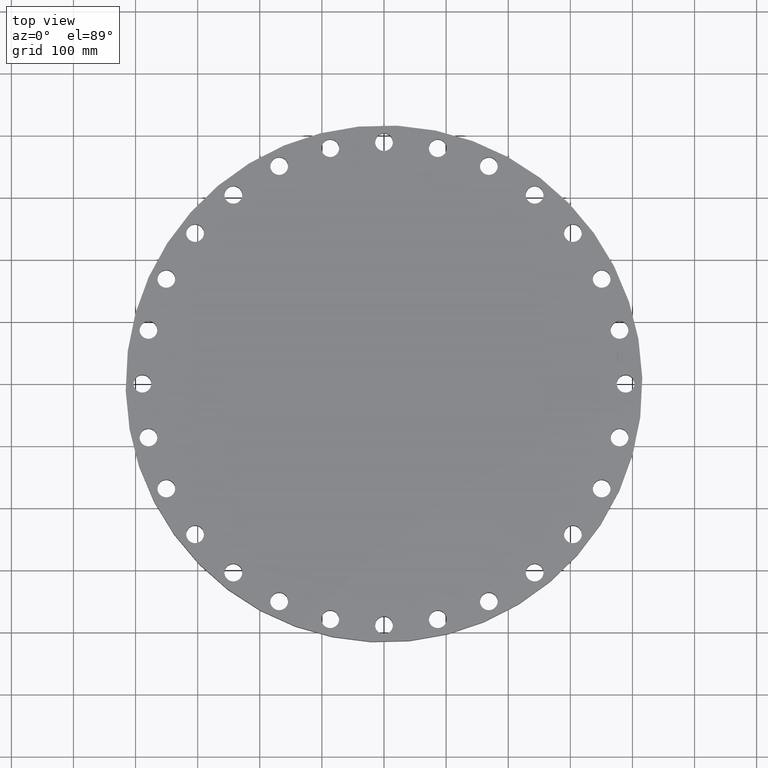
[diagram: clean part render]
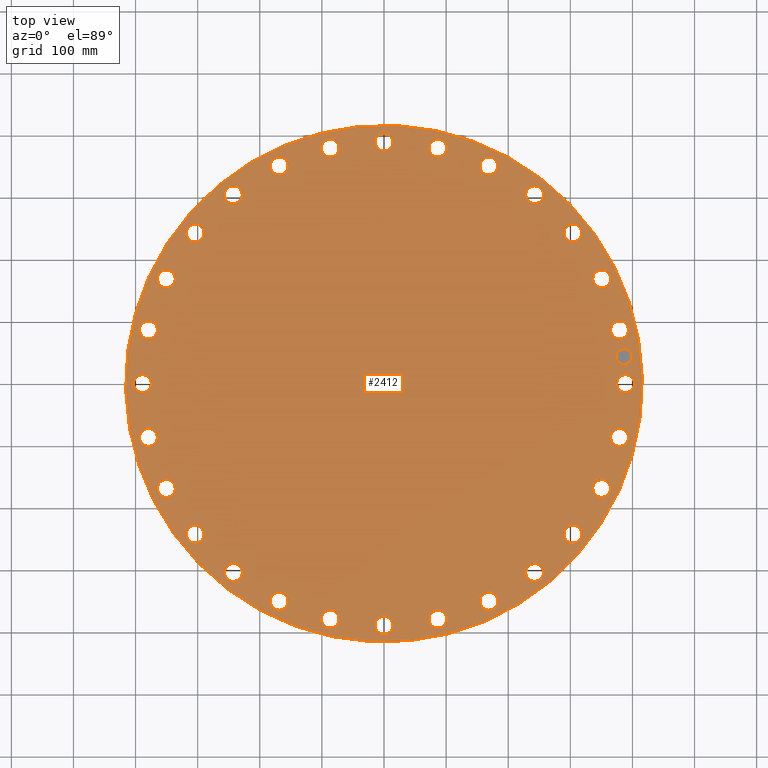
[diagram: same view with one face highlighted and labeled with its STEP entity id]
A machine part, top view. The second image highlights one B-rep face of the part: STEP entity #2412.
In plain terms, the highlighted planar face has unit normal (0, 0, -1).
Its self-contained STEP definition (entity closure, byte-faithful):
#65=AXIS2_PLACEMENT_3D('Circle Axis2P3D',#63,#64,$) ;
#89=AXIS2_PLACEMENT_3D('Circle Axis2P3D',#87,#88,$) ;
#123=AXIS2_PLACEMENT_3D('Circle Axis2P3D',#121,#122,$) ;
#147=AXIS2_PLACEMENT_3D('Circle Axis2P3D',#145,#146,$) ;
#1106=AXIS2_PLACEMENT_3D('Circle Axis2P3D',#1104,#1105,$) ;
#1118=AXIS2_PLACEMENT_3D('Circle Axis2P3D',#1116,#1117,$) ;
#1150=AXIS2_PLACEMENT_3D('Circle Axis2P3D',#1148,#1149,$) ;
#1162=AXIS2_PLACEMENT_3D('Circle Axis2P3D',#1160,#1161,$) ;
#1194=AXIS2_PLACEMENT_3D('Circle Axis2P3D',#1192,#1193,$) ;
#1206=AXIS2_PLACEMENT_3D('Circle Axis2P3D',#1204,#1205,$) ;
#1238=AXIS2_PLACEMENT_3D('Circle Axis2P3D',#1236,#1237,$) ;
#1250=AXIS2_PLACEMENT_3D('Circle Axis2P3D',#1248,#1249,$) ;
#1282=AXIS2_PLACEMENT_3D('Circle Axis2P3D',#1280,#1281,$) ;
#1294=AXIS2_PLACEMENT_3D('Circle Axis2P3D',#1292,#1293,$) ;
#1326=AXIS2_PLACEMENT_3D('Circle Axis2P3D',#1324,#1325,$) ;
#1338=AXIS2_PLACEMENT_3D('Circle Axis2P3D',#1336,#1337,$) ;
#1370=AXIS2_PLACEMENT_3D('Circle Axis2P3D',#1368,#1369,$) ;
#1382=AXIS2_PLACEMENT_3D('Circle Axis2P3D',#1380,#1381,$) ;
#1414=AXIS2_PLACEMENT_3D('Circle Axis2P3D',#1412,#1413,$) ;
#1426=AXIS2_PLACEMENT_3D('Circle Axis2P3D',#1424,#1425,$) ;
#1458=AXIS2_PLACEMENT_3D('Circle Axis2P3D',#1456,#1457,$) ;
#1470=AXIS2_PLACEMENT_3D('Circle Axis2P3D',#1468,#1469,$) ;
#1502=AXIS2_PLACEMENT_3D('Circle Axis2P3D',#1500,#1501,$) ;
#1514=AXIS2_PLACEMENT_3D('Circle Axis2P3D',#1512,#1513,$) ;
#1546=AXIS2_PLACEMENT_3D('Circle Axis2P3D',#1544,#1545,$) ;
#1558=AXIS2_PLACEMENT_3D('Circle Axis2P3D',#1556,#1557,$) ;
#1590=AXIS2_PLACEMENT_3D('Circle Axis2P3D',#1588,#1589,$) ;
#1602=AXIS2_PLACEMENT_3D('Circle Axis2P3D',#1600,#1601,$) ;
#1634=AXIS2_PLACEMENT_3D('Circle Axis2P3D',#1632,#1633,$) ;
#1646=AXIS2_PLACEMENT_3D('Circle Axis2P3D',#1644,#1645,$) ;
#1678=AXIS2_PLACEMENT_3D('Circle Axis2P3D',#1676,#1677,$) ;
#1690=AXIS2_PLACEMENT_3D('Circle Axis2P3D',#1688,#1689,$) ;
#1722=AXIS2_PLACEMENT_3D('Circle Axis2P3D',#1720,#1721,$) ;
#1734=AXIS2_PLACEMENT_3D('Circle Axis2P3D',#1732,#1733,$) ;
#1766=AXIS2_PLACEMENT_3D('Circle Axis2P3D',#1764,#1765,$) ;
#1778=AXIS2_PLACEMENT_3D('Circle Axis2P3D',#1776,#1777,$) ;
#1810=AXIS2_PLACEMENT_3D('Circle Axis2P3D',#1808,#1809,$) ;
#1822=AXIS2_PLACEMENT_3D('Circle Axis2P3D',#1820,#1821,$) ;
#1854=AXIS2_PLACEMENT_3D('Circle Axis2P3D',#1852,#1853,$) ;
#1866=AXIS2_PLACEMENT_3D('Circle Axis2P3D',#1864,#1865,$) ;
#1898=AXIS2_PLACEMENT_3D('Circle Axis2P3D',#1896,#1897,$) ;
#1910=AXIS2_PLACEMENT_3D('Circle Axis2P3D',#1908,#1909,$) ;
#1942=AXIS2_PLACEMENT_3D('Circle Axis2P3D',#1940,#1941,$) ;
#1954=AXIS2_PLACEMENT_3D('Circle Axis2P3D',#1952,#1953,$) ;
#1986=AXIS2_PLACEMENT_3D('Circle Axis2P3D',#1984,#1985,$) ;
#1998=AXIS2_PLACEMENT_3D('Circle Axis2P3D',#1996,#1997,$) ;
#2030=AXIS2_PLACEMENT_3D('Circle Axis2P3D',#2028,#2029,$) ;
#2042=AXIS2_PLACEMENT_3D('Circle Axis2P3D',#2040,#2041,$) ;
#2074=AXIS2_PLACEMENT_3D('Circle Axis2P3D',#2072,#2073,$) ;
#2086=AXIS2_PLACEMENT_3D('Circle Axis2P3D',#2084,#2085,$) ;
#2118=AXIS2_PLACEMENT_3D('Circle Axis2P3D',#2116,#2117,$) ;
#2130=AXIS2_PLACEMENT_3D('Circle Axis2P3D',#2128,#2129,$) ;
#2162=AXIS2_PLACEMENT_3D('Circle Axis2P3D',#2160,#2161,$) ;
#2174=AXIS2_PLACEMENT_3D('Circle Axis2P3D',#2172,#2173,$) ;
#2206=AXIS2_PLACEMENT_3D('Circle Axis2P3D',#2204,#2205,$) ;
#2218=AXIS2_PLACEMENT_3D('Circle Axis2P3D',#2216,#2217,$) ;
#2250=AXIS2_PLACEMENT_3D('Circle Axis2P3D',#2248,#2249,$) ;
#2262=AXIS2_PLACEMENT_3D('Circle Axis2P3D',#2260,#2261,$) ;
#2276=AXIS2_PLACEMENT_3D('Plane Axis2P3D',#2273,#2274,#2275) ;
#2396=AXIS2_PLACEMENT_3D('Circle Axis2P3D',#2394,#2395,$) ;
#2405=AXIS2_PLACEMENT_3D('Circle Axis2P3D',#2403,#2404,$) ;
#46=CARTESIAN_POINT('Vertex',(14.8191658526,0.270875429312,2.75000000001)) ;
#60=CARTESIAN_POINT('Vertex',(15.8108341475,-0.270875429312,2.75000000001)) ;
#63=CARTESIAN_POINT('Axis2P3D Location',(15.3150000001,0.,2.75000000001)) ;
#87=CARTESIAN_POINT('Axis2P3D Location',(15.3150000001,0.,2.75000000001)) ;
#118=CARTESIAN_POINT('Vertex',(-7.85059319468,-14.370414451,2.75000000001)) ;
#121=CARTESIAN_POINT('Axis2P3D Location',(0.,0.,2.75000000001)) ;
#125=CARTESIAN_POINT('Vertex',(7.85059319468,14.370414451,2.75000000001)) ;
#145=CARTESIAN_POINT('Axis2P3D Location',(0.,0.,2.75000000001)) ;
#1094=CARTESIAN_POINT('Vertex',(-14.8191658526,-0.270875429312,2.75000000001)) ;
#1101=CARTESIAN_POINT('Vertex',(-15.8108341475,0.270875429312,2.75000000001)) ;
#1104=CARTESIAN_POINT('Axis2P3D Location',(-15.3150000001,-8.67677282178E-015,2.75000000001)) ;
#1116=CARTESIAN_POINT('Axis2P3D Location',(-15.3150000001,-8.67677282178E-015,2.75000000001)) ;
#1138=CARTESIAN_POINT('Vertex',(14.3873429714,3.56165864273,2.75000000001)) ;
#1145=CARTESIAN_POINT('Vertex',(15.4746989788,3.25415756438,2.75000000001)) ;
#1148=CARTESIAN_POINT('Axis2P3D Location',(14.9310209751,3.40790810355,2.75000000001)) ;
#1160=CARTESIAN_POINT('Axis2P3D Location',(14.9310209751,3.40790810355,2.75000000001)) ;
#1182=CARTESIAN_POINT('Vertex',(-14.3873429714,-3.56165864273,2.75000000001)) ;
#1189=CARTESIAN_POINT('Vertex',(-15.4746989788,-3.25415756438,2.75000000001)) ;
#1192=CARTESIAN_POINT('Axis2P3D Location',(-14.9310209751,-3.40790810355,2.75000000001)) ;
#1204=CARTESIAN_POINT('Axis2P3D Location',(-14.9310209751,-3.40790810355,2.75000000001)) ;
#1226=CARTESIAN_POINT('Vertex',(14.5078938785,-3.03349060921,2.75000000001)) ;
#1233=CARTESIAN_POINT('Vertex',(15.3541480718,-3.7823255979,2.75000000001)) ;
#1236=CARTESIAN_POINT('Axis2P3D Location',(14.9310209751,-3.40790810355,2.75000000001)) ;
#1248=CARTESIAN_POINT('Axis2P3D Location',(14.9310209751,-3.40790810355,2.75000000001)) ;
#1270=CARTESIAN_POINT('Vertex',(9.02781984268,11.7549784752,2.75000000001)) ;
#1277=CARTESIAN_POINT('Vertex',(10.0696727883,12.1925198329,2.75000000001)) ;
#1280=CARTESIAN_POINT('Axis2P3D Location',(9.5487463155,11.973749154,2.75000000001)) ;
#1292=CARTESIAN_POINT('Axis2P3D Location',(9.5487463155,11.973749154,2.75000000001)) ;
#1314=CARTESIAN_POINT('Vertex',(-13.4691355256,6.18574476184,2.75000000001)) ;
#1321=CARTESIAN_POINT('Vertex',(-14.1275408984,7.10411416739,2.75000000001)) ;
#1324=CARTESIAN_POINT('Axis2P3D Location',(-13.798338212,6.64492946461,2.75000000001)) ;
#1336=CARTESIAN_POINT('Axis2P3D Location',(-13.798338212,6.64492946461,2.75000000001)) ;
#1358=CARTESIAN_POINT('Vertex',(-3.56165864273,14.3873429714,2.75000000001)) ;
#1365=CARTESIAN_POINT('Vertex',(-3.25415756438,15.4746989788,2.75000000001)) ;
#1368=CARTESIAN_POINT('Axis2P3D Location',(-3.40790810355,14.9310209751,2.75000000001)) ;
#1380=CARTESIAN_POINT('Axis2P3D Location',(-3.40790810355,14.9310209751,2.75000000001)) ;
#1402=CARTESIAN_POINT('Vertex',(11.7549784752,-9.02781984268,2.75000000001)) ;
#1409=CARTESIAN_POINT('Vertex',(12.1925198329,-10.0696727883,2.75000000001)) ;
#1412=CARTESIAN_POINT('Axis2P3D Location',(11.973749154,-9.5487463155,2.75000000001)) ;
#1424=CARTESIAN_POINT('Axis2P3D Location',(11.973749154,-9.5487463155,2.75000000001)) ;
#1446=CARTESIAN_POINT('Vertex',(11.4172023397,9.45137771961,2.75000000001)) ;
#1453=CARTESIAN_POINT('Vertex',(12.5302959684,9.6461149114,2.75000000001)) ;
#1456=CARTESIAN_POINT('Axis2P3D Location',(11.973749154,9.5487463155,2.75000000001)) ;
#1468=CARTESIAN_POINT('Axis2P3D Location',(11.973749154,9.5487463155,2.75000000001)) ;
#1490=CARTESIAN_POINT('Vertex',(9.45137771961,-11.4172023397,2.75000000001)) ;
#1497=CARTESIAN_POINT('Vertex',(9.6461149114,-12.5302959684,2.75000000001)) ;
#1500=CARTESIAN_POINT('Axis2P3D Location',(9.5487463155,-11.973749154,2.75000000001)) ;
#1512=CARTESIAN_POINT('Axis2P3D Location',(9.5487463155,-11.973749154,2.75000000001)) ;
#1534=CARTESIAN_POINT('Vertex',(-9.45137771961,11.4172023397,2.75000000001)) ;
#1541=CARTESIAN_POINT('Vertex',(-9.6461149114,12.5302959684,2.75000000001)) ;
#1544=CARTESIAN_POINT('Axis2P3D Location',(-9.5487463155,11.973749154,2.75000000001)) ;
#1556=CARTESIAN_POINT('Axis2P3D Location',(-9.5487463155,11.973749154,2.75000000001)) ;
#1578=CARTESIAN_POINT('Vertex',(6.67384541962,-13.2340786374,2.75000000001)) ;
#1585=CARTESIAN_POINT('Vertex',(6.61601350961,-14.3625977866,2.75000000001)) ;
#1588=CARTESIAN_POINT('Axis2P3D Location',(6.64492946461,-13.798338212,2.75000000001)) ;
#1600=CARTESIAN_POINT('Axis2P3D Location',(6.64492946461,-13.798338212,2.75000000001)) ;
#1622=CARTESIAN_POINT('Vertex',(3.03349060921,14.5078938785,2.75000000001)) ;
#1629=CARTESIAN_POINT('Vertex',(3.7823255979,15.3541480718,2.75000000001)) ;
#1632=CARTESIAN_POINT('Axis2P3D Location',(3.40790810355,14.9310209751,2.75000000001)) ;
#1644=CARTESIAN_POINT('Axis2P3D Location',(3.40790810355,14.9310209751,2.75000000001)) ;
#1666=CARTESIAN_POINT('Vertex',(3.56165864273,-14.3873429714,2.75000000001)) ;
#1673=CARTESIAN_POINT('Vertex',(3.25415756438,-15.4746989788,2.75000000001)) ;
#1676=CARTESIAN_POINT('Axis2P3D Location',(3.40790810355,-14.9310209751,2.75000000001)) ;
#1688=CARTESIAN_POINT('Axis2P3D Location',(3.40790810355,-14.9310209751,2.75000000001)) ;
#1710=CARTESIAN_POINT('Vertex',(13.2340786374,6.67384541962,2.75000000001)) ;
#1717=CARTESIAN_POINT('Vertex',(14.3625977866,6.61601350961,2.75000000001)) ;
#1720=CARTESIAN_POINT('Axis2P3D Location',(13.798338212,6.64492946461,2.75000000001)) ;
#1732=CARTESIAN_POINT('Axis2P3D Location',(13.798338212,6.64492946461,2.75000000001)) ;
#1754=CARTESIAN_POINT('Vertex',(0.270875429312,-14.8191658526,2.75000000001)) ;
#1761=CARTESIAN_POINT('Vertex',(-0.270875429312,-15.8108341475,2.75000000001)) ;
#1764=CARTESIAN_POINT('Axis2P3D Location',(4.33838641089E-015,-15.3150000001,2.75000000001)) ;
#1776=CARTESIAN_POINT('Axis2P3D Location',(4.33838641089E-015,-15.3150000001,2.75000000001)) ;
#1798=CARTESIAN_POINT('Vertex',(-14.5078938785,3.03349060921,2.75000000001)) ;
#1805=CARTESIAN_POINT('Vertex',(-15.3541480718,3.7823255979,2.75000000001)) ;
#1808=CARTESIAN_POINT('Axis2P3D Location',(-14.9310209751,3.40790810355,2.75000000001)) ;
#1820=CARTESIAN_POINT('Axis2P3D Location',(-14.9310209751,3.40790810355,2.75000000001)) ;
#1842=CARTESIAN_POINT('Vertex',(-3.03349060921,-14.5078938785,2.75000000001)) ;
#1849=CARTESIAN_POINT('Vertex',(-3.7823255979,-15.3541480718,2.75000000001)) ;
#1852=CARTESIAN_POINT('Axis2P3D Location',(-3.40790810355,-14.9310209751,2.75000000001)) ;
#1864=CARTESIAN_POINT('Axis2P3D Location',(-3.40790810355,-14.9310209751,2.75000000001)) ;
#1886=CARTESIAN_POINT('Vertex',(-11.7549784752,9.02781984268,2.75000000001)) ;
#1893=CARTESIAN_POINT('Vertex',(-12.1925198329,10.0696727883,2.75000000001)) ;
#1896=CARTESIAN_POINT('Axis2P3D Location',(-11.973749154,9.5487463155,2.75000000001)) ;
#1908=CARTESIAN_POINT('Axis2P3D Location',(-11.973749154,9.5487463155,2.75000000001)) ;
#1930=CARTESIAN_POINT('Vertex',(-6.18574476184,-13.4691355256,2.75000000001)) ;
#1937=CARTESIAN_POINT('Vertex',(-7.10411416739,-14.1275408984,2.75000000001)) ;
#1940=CARTESIAN_POINT('Axis2P3D Location',(-6.64492946461,-13.798338212,2.75000000001)) ;
#1952=CARTESIAN_POINT('Axis2P3D Location',(-6.64492946461,-13.798338212,2.75000000001)) ;
#1974=CARTESIAN_POINT('Vertex',(-6.67384541962,13.2340786374,2.75000000001)) ;
#1981=CARTESIAN_POINT('Vertex',(-6.61601350961,14.3625977866,2.75000000001)) ;
#1984=CARTESIAN_POINT('Axis2P3D Location',(-6.64492946461,13.798338212,2.75000000001)) ;
#1996=CARTESIAN_POINT('Axis2P3D Location',(-6.64492946461,13.798338212,2.75000000001)) ;
#2018=CARTESIAN_POINT('Vertex',(-9.02781984268,-11.7549784752,2.75000000001)) ;
#2025=CARTESIAN_POINT('Vertex',(-10.0696727883,-12.1925198329,2.75000000001)) ;
#2028=CARTESIAN_POINT('Axis2P3D Location',(-9.5487463155,-11.973749154,2.75000000001)) ;
#2040=CARTESIAN_POINT('Axis2P3D Location',(-9.5487463155,-11.973749154,2.75000000001)) ;
#2062=CARTESIAN_POINT('Vertex',(-0.270875429312,14.8191658526,2.75000000001)) ;
#2069=CARTESIAN_POINT('Vertex',(0.270875429312,15.8108341475,2.75000000001)) ;
#2072=CARTESIAN_POINT('Axis2P3D Location',(-2.81331985935E-015,15.3150000001,2.75000000001)) ;
#2084=CARTESIAN_POINT('Axis2P3D Location',(-2.81331985935E-015,15.3150000001,2.75000000001)) ;
#2106=CARTESIAN_POINT('Vertex',(-11.4172023397,-9.45137771961,2.75000000001)) ;
#2113=CARTESIAN_POINT('Vertex',(-12.5302959684,-9.6461149114,2.75000000001)) ;
#2116=CARTESIAN_POINT('Axis2P3D Location',(-11.973749154,-9.5487463155,2.75000000001)) ;
#2128=CARTESIAN_POINT('Axis2P3D Location',(-11.973749154,-9.5487463155,2.75000000001)) ;
#2150=CARTESIAN_POINT('Vertex',(6.18574476184,13.4691355256,2.75000000001)) ;
#2157=CARTESIAN_POINT('Vertex',(7.10411416739,14.1275408984,2.75000000001)) ;
#2160=CARTESIAN_POINT('Axis2P3D Location',(6.64492946461,13.798338212,2.75000000001)) ;
#2172=CARTESIAN_POINT('Axis2P3D Location',(6.64492946461,13.798338212,2.75000000001)) ;
#2194=CARTESIAN_POINT('Vertex',(-13.2340786374,-6.67384541962,2.75000000001)) ;
#2201=CARTESIAN_POINT('Vertex',(-14.3625977866,-6.61601350961,2.75000000001)) ;
#2204=CARTESIAN_POINT('Axis2P3D Location',(-13.798338212,-6.64492946461,2.75000000001)) ;
#2216=CARTESIAN_POINT('Axis2P3D Location',(-13.798338212,-6.64492946461,2.75000000001)) ;
#2238=CARTESIAN_POINT('Vertex',(13.4691355256,-6.18574476184,2.75000000001)) ;
#2245=CARTESIAN_POINT('Vertex',(14.1275408984,-7.10411416739,2.75000000001)) ;
#2248=CARTESIAN_POINT('Axis2P3D Location',(13.798338212,-6.64492946461,2.75000000001)) ;
#2260=CARTESIAN_POINT('Axis2P3D Location',(13.798338212,-6.64492946461,2.75000000001)) ;
#2273=CARTESIAN_POINT('Axis2P3D Location',(0.,16.3750000001,2.75000000001)) ;
#2394=CARTESIAN_POINT('Axis2P3D Location',(15.2187024946,1.71473595153,2.75000000001)) ;
#2398=CARTESIAN_POINT('Vertex',(15.1627202565,2.21159205648,2.75000000001)) ;
#2400=CARTESIAN_POINT('Vertex',(15.2746847326,1.21787984658,2.75000000001)) ;
#2403=CARTESIAN_POINT('Axis2P3D Location',(15.2187024946,1.71473595153,2.75000000001)) ;
#64=DIRECTION('Axis2P3D Direction',(0.,-0.,-0.0393700787402)) ;
#88=DIRECTION('Axis2P3D Direction',(0.,-0.,-0.0393700787402)) ;
#122=DIRECTION('Axis2P3D Direction',(0.,0.,-0.0393700787402)) ;
#146=DIRECTION('Axis2P3D Direction',(0.,0.,-0.0393700787402)) ;
#1105=DIRECTION('Axis2P3D Direction',(-0.,0.,-0.0393700787402)) ;
#1117=DIRECTION('Axis2P3D Direction',(-0.,0.,-0.0393700787402)) ;
#1149=DIRECTION('Axis2P3D Direction',(0.,0.,-0.0393700787402)) ;
#1161=DIRECTION('Axis2P3D Direction',(0.,0.,-0.0393700787402)) ;
#1193=DIRECTION('Axis2P3D Direction',(-0.,0.,-0.0393700787402)) ;
#1205=DIRECTION('Axis2P3D Direction',(-0.,0.,-0.0393700787402)) ;
#1237=DIRECTION('Axis2P3D Direction',(0.,-0.,-0.0393700787402)) ;
#1249=DIRECTION('Axis2P3D Direction',(0.,-0.,-0.0393700787402)) ;
#1281=DIRECTION('Axis2P3D Direction',(0.,0.,-0.0393700787402)) ;
#1293=DIRECTION('Axis2P3D Direction',(0.,0.,-0.0393700787402)) ;
#1325=DIRECTION('Axis2P3D Direction',(0.,0.,-0.0393700787402)) ;
#1337=DIRECTION('Axis2P3D Direction',(0.,0.,-0.0393700787402)) ;
#1369=DIRECTION('Axis2P3D Direction',(0.,0.,-0.0393700787402)) ;
#1381=DIRECTION('Axis2P3D Direction',(0.,0.,-0.0393700787402)) ;
#1413=DIRECTION('Axis2P3D Direction',(0.,-0.,-0.0393700787402)) ;
#1425=DIRECTION('Axis2P3D Direction',(0.,-0.,-0.0393700787402)) ;
#1457=DIRECTION('Axis2P3D Direction',(0.,0.,-0.0393700787402)) ;
#1469=DIRECTION('Axis2P3D Direction',(0.,0.,-0.0393700787402)) ;
#1501=DIRECTION('Axis2P3D Direction',(0.,-0.,-0.0393700787402)) ;
#1513=DIRECTION('Axis2P3D Direction',(0.,-0.,-0.0393700787402)) ;
#1545=DIRECTION('Axis2P3D Direction',(0.,0.,-0.0393700787402)) ;
#1557=DIRECTION('Axis2P3D Direction',(0.,0.,-0.0393700787402)) ;
#1589=DIRECTION('Axis2P3D Direction',(0.,-0.,-0.0393700787402)) ;
#1601=DIRECTION('Axis2P3D Direction',(0.,-0.,-0.0393700787402)) ;
#1633=DIRECTION('Axis2P3D Direction',(0.,0.,-0.0393700787402)) ;
#1645=DIRECTION('Axis2P3D Direction',(0.,0.,-0.0393700787402)) ;
#1677=DIRECTION('Axis2P3D Direction',(0.,-0.,-0.0393700787402)) ;
#1689=DIRECTION('Axis2P3D Direction',(0.,-0.,-0.0393700787402)) ;
#1721=DIRECTION('Axis2P3D Direction',(0.,0.,-0.0393700787402)) ;
#1733=DIRECTION('Axis2P3D Direction',(0.,0.,-0.0393700787402)) ;
#1765=DIRECTION('Axis2P3D Direction',(0.,-0.,-0.0393700787402)) ;
#1777=DIRECTION('Axis2P3D Direction',(0.,-0.,-0.0393700787402)) ;
#1809=DIRECTION('Axis2P3D Direction',(0.,0.,-0.0393700787402)) ;
#1821=DIRECTION('Axis2P3D Direction',(0.,0.,-0.0393700787402)) ;
#1853=DIRECTION('Axis2P3D Direction',(-0.,0.,-0.0393700787402)) ;
#1865=DIRECTION('Axis2P3D Direction',(-0.,0.,-0.0393700787402)) ;
#1897=DIRECTION('Axis2P3D Direction',(0.,0.,-0.0393700787402)) ;
#1909=DIRECTION('Axis2P3D Direction',(0.,0.,-0.0393700787402)) ;
#1941=DIRECTION('Axis2P3D Direction',(-0.,0.,-0.0393700787402)) ;
#1953=DIRECTION('Axis2P3D Direction',(-0.,0.,-0.0393700787402)) ;
#1985=DIRECTION('Axis2P3D Direction',(0.,0.,-0.0393700787402)) ;
#1997=DIRECTION('Axis2P3D Direction',(0.,0.,-0.0393700787402)) ;
#2029=DIRECTION('Axis2P3D Direction',(-0.,0.,-0.0393700787402)) ;
#2041=DIRECTION('Axis2P3D Direction',(-0.,0.,-0.0393700787402)) ;
#2073=DIRECTION('Axis2P3D Direction',(0.,0.,-0.0393700787402)) ;
#2085=DIRECTION('Axis2P3D Direction',(0.,0.,-0.0393700787402)) ;
#2117=DIRECTION('Axis2P3D Direction',(-0.,0.,-0.0393700787402)) ;
#2129=DIRECTION('Axis2P3D Direction',(-0.,0.,-0.0393700787402)) ;
#2161=DIRECTION('Axis2P3D Direction',(0.,0.,-0.0393700787402)) ;
#2173=DIRECTION('Axis2P3D Direction',(0.,0.,-0.0393700787402)) ;
#2205=DIRECTION('Axis2P3D Direction',(-0.,0.,-0.0393700787402)) ;
#2217=DIRECTION('Axis2P3D Direction',(-0.,0.,-0.0393700787402)) ;
#2249=DIRECTION('Axis2P3D Direction',(0.,-0.,-0.0393700787402)) ;
#2261=DIRECTION('Axis2P3D Direction',(0.,-0.,-0.0393700787402)) ;
#2274=DIRECTION('Axis2P3D Direction',(0.,0.,-0.0393700787402)) ;
#2275=DIRECTION('Axis2P3D XDirection',(0.0393700787402,0.,0.)) ;
#2395=DIRECTION('Axis2P3D Direction',(0.,0.,-0.0393700787402)) ;
#2404=DIRECTION('Axis2P3D Direction',(0.,0.,-0.0393700787402)) ;
#2279=ORIENTED_EDGE('',*,*,#149,.F.) ;
#2280=ORIENTED_EDGE('',*,*,#127,.F.) ;
#2283=ORIENTED_EDGE('',*,*,#67,.T.) ;
#2284=ORIENTED_EDGE('',*,*,#91,.T.) ;
#2287=ORIENTED_EDGE('',*,*,#1252,.T.) ;
#2288=ORIENTED_EDGE('',*,*,#1240,.T.) ;
#2291=ORIENTED_EDGE('',*,*,#2264,.T.) ;
#2292=ORIENTED_EDGE('',*,*,#2252,.T.) ;
#2295=ORIENTED_EDGE('',*,*,#1428,.T.) ;
#2296=ORIENTED_EDGE('',*,*,#1416,.T.) ;
#2299=ORIENTED_EDGE('',*,*,#1516,.T.) ;
#2300=ORIENTED_EDGE('',*,*,#1504,.T.) ;
#2303=ORIENTED_EDGE('',*,*,#1604,.T.) ;
#2304=ORIENTED_EDGE('',*,*,#1592,.T.) ;
#2307=ORIENTED_EDGE('',*,*,#1692,.T.) ;
#2308=ORIENTED_EDGE('',*,*,#1680,.T.) ;
#2311=ORIENTED_EDGE('',*,*,#1780,.T.) ;
#2312=ORIENTED_EDGE('',*,*,#1768,.T.) ;
#2315=ORIENTED_EDGE('',*,*,#1868,.T.) ;
#2316=ORIENTED_EDGE('',*,*,#1856,.T.) ;
#2319=ORIENTED_EDGE('',*,*,#1956,.T.) ;
#2320=ORIENTED_EDGE('',*,*,#1944,.T.) ;
#2323=ORIENTED_EDGE('',*,*,#2044,.T.) ;
#2324=ORIENTED_EDGE('',*,*,#2032,.T.) ;
#2327=ORIENTED_EDGE('',*,*,#2132,.T.) ;
#2328=ORIENTED_EDGE('',*,*,#2120,.T.) ;
#2331=ORIENTED_EDGE('',*,*,#2220,.T.) ;
#2332=ORIENTED_EDGE('',*,*,#2208,.T.) ;
#2335=ORIENTED_EDGE('',*,*,#1208,.T.) ;
#2336=ORIENTED_EDGE('',*,*,#1196,.T.) ;
#2339=ORIENTED_EDGE('',*,*,#1120,.T.) ;
#2340=ORIENTED_EDGE('',*,*,#1108,.T.) ;
#2343=ORIENTED_EDGE('',*,*,#1824,.T.) ;
#2344=ORIENTED_EDGE('',*,*,#1812,.T.) ;
#2347=ORIENTED_EDGE('',*,*,#1340,.T.) ;
#2348=ORIENTED_EDGE('',*,*,#1328,.T.) ;
#2351=ORIENTED_EDGE('',*,*,#1912,.T.) ;
#2352=ORIENTED_EDGE('',*,*,#1900,.T.) ;
#2355=ORIENTED_EDGE('',*,*,#1560,.T.) ;
#2356=ORIENTED_EDGE('',*,*,#1548,.T.) ;
#2359=ORIENTED_EDGE('',*,*,#2000,.T.) ;
#2360=ORIENTED_EDGE('',*,*,#1988,.T.) ;
#2363=ORIENTED_EDGE('',*,*,#1384,.T.) ;
#2364=ORIENTED_EDGE('',*,*,#1372,.T.) ;
#2367=ORIENTED_EDGE('',*,*,#2088,.T.) ;
#2368=ORIENTED_EDGE('',*,*,#2076,.T.) ;
#2371=ORIENTED_EDGE('',*,*,#1648,.T.) ;
#2372=ORIENTED_EDGE('',*,*,#1636,.T.) ;
#2375=ORIENTED_EDGE('',*,*,#2176,.T.) ;
#2376=ORIENTED_EDGE('',*,*,#2164,.T.) ;
#2379=ORIENTED_EDGE('',*,*,#1296,.T.) ;
#2380=ORIENTED_EDGE('',*,*,#1284,.T.) ;
#2383=ORIENTED_EDGE('',*,*,#1472,.T.) ;
#2384=ORIENTED_EDGE('',*,*,#1460,.T.) ;
#2387=ORIENTED_EDGE('',*,*,#1736,.T.) ;
#2388=ORIENTED_EDGE('',*,*,#1724,.T.) ;
#2391=ORIENTED_EDGE('',*,*,#1164,.T.) ;
#2392=ORIENTED_EDGE('',*,*,#1152,.T.) ;
#2409=ORIENTED_EDGE('',*,*,#2402,.T.) ;
#2410=ORIENTED_EDGE('',*,*,#2407,.T.) ;
#2285=FACE_BOUND('',#2282,.T.) ;
#2289=FACE_BOUND('',#2286,.T.) ;
#2293=FACE_BOUND('',#2290,.T.) ;
#2297=FACE_BOUND('',#2294,.T.) ;
#2301=FACE_BOUND('',#2298,.T.) ;
#2305=FACE_BOUND('',#2302,.T.) ;
#2309=FACE_BOUND('',#2306,.T.) ;
#2313=FACE_BOUND('',#2310,.T.) ;
#2317=FACE_BOUND('',#2314,.T.) ;
#2321=FACE_BOUND('',#2318,.T.) ;
#2325=FACE_BOUND('',#2322,.T.) ;
#2329=FACE_BOUND('',#2326,.T.) ;
#2333=FACE_BOUND('',#2330,.T.) ;
#2337=FACE_BOUND('',#2334,.T.) ;
#2341=FACE_BOUND('',#2338,.T.) ;
#2345=FACE_BOUND('',#2342,.T.) ;
#2349=FACE_BOUND('',#2346,.T.) ;
#2353=FACE_BOUND('',#2350,.T.) ;
#2357=FACE_BOUND('',#2354,.T.) ;
#2361=FACE_BOUND('',#2358,.T.) ;
#2365=FACE_BOUND('',#2362,.T.) ;
#2369=FACE_BOUND('',#2366,.T.) ;
#2373=FACE_BOUND('',#2370,.T.) ;
#2377=FACE_BOUND('',#2374,.T.) ;
#2381=FACE_BOUND('',#2378,.T.) ;
#2385=FACE_BOUND('',#2382,.T.) ;
#2389=FACE_BOUND('',#2386,.T.) ;
#2393=FACE_BOUND('',#2390,.T.) ;
#2411=FACE_BOUND('',#2408,.T.) ;
#2412=ADVANCED_FACE('PartBody',(#2281,#2285,#2289,#2293,#2297,#2301,#2305,#2309,#2313,#2317,#2321,#2325,#2329,#2333,#2337,#2341,#2345,#2349,#2353,#2357,#2361,#2365,#2369,#2373,#2377,#2381,#2385,#2389,#2393,#2411),#2277,.F.) ;
#66=CIRCLE('generated circle',#65,0.565000000002) ;
#90=CIRCLE('generated circle',#89,0.565000000002) ;
#124=CIRCLE('generated circle',#123,16.3750000001) ;
#148=CIRCLE('generated circle',#147,16.3750000001) ;
#1107=CIRCLE('generated circle',#1106,0.565000000002) ;
#1119=CIRCLE('generated circle',#1118,0.565000000002) ;
#1151=CIRCLE('generated circle',#1150,0.565000000002) ;
#1163=CIRCLE('generated circle',#1162,0.565000000002) ;
#1195=CIRCLE('generated circle',#1194,0.565000000002) ;
#1207=CIRCLE('generated circle',#1206,0.565000000002) ;
#1239=CIRCLE('generated circle',#1238,0.565000000002) ;
#1251=CIRCLE('generated circle',#1250,0.565000000002) ;
#1283=CIRCLE('generated circle',#1282,0.565000000002) ;
#1295=CIRCLE('generated circle',#1294,0.565000000002) ;
#1327=CIRCLE('generated circle',#1326,0.565000000002) ;
#1339=CIRCLE('generated circle',#1338,0.565000000002) ;
#1371=CIRCLE('generated circle',#1370,0.565000000002) ;
#1383=CIRCLE('generated circle',#1382,0.565000000002) ;
#1415=CIRCLE('generated circle',#1414,0.565000000002) ;
#1427=CIRCLE('generated circle',#1426,0.565000000002) ;
#1459=CIRCLE('generated circle',#1458,0.565000000002) ;
#1471=CIRCLE('generated circle',#1470,0.565000000002) ;
#1503=CIRCLE('generated circle',#1502,0.565000000002) ;
#1515=CIRCLE('generated circle',#1514,0.565000000002) ;
#1547=CIRCLE('generated circle',#1546,0.565000000002) ;
#1559=CIRCLE('generated circle',#1558,0.565000000002) ;
#1591=CIRCLE('generated circle',#1590,0.565000000002) ;
#1603=CIRCLE('generated circle',#1602,0.565000000002) ;
#1635=CIRCLE('generated circle',#1634,0.565000000002) ;
#1647=CIRCLE('generated circle',#1646,0.565000000002) ;
#1679=CIRCLE('generated circle',#1678,0.565000000002) ;
#1691=CIRCLE('generated circle',#1690,0.565000000002) ;
#1723=CIRCLE('generated circle',#1722,0.565000000002) ;
#1735=CIRCLE('generated circle',#1734,0.565000000002) ;
#1767=CIRCLE('generated circle',#1766,0.565000000002) ;
#1779=CIRCLE('generated circle',#1778,0.565000000002) ;
#1811=CIRCLE('generated circle',#1810,0.565000000002) ;
#1823=CIRCLE('generated circle',#1822,0.565000000002) ;
#1855=CIRCLE('generated circle',#1854,0.565000000002) ;
#1867=CIRCLE('generated circle',#1866,0.565000000002) ;
#1899=CIRCLE('generated circle',#1898,0.565000000002) ;
#1911=CIRCLE('generated circle',#1910,0.565000000002) ;
#1943=CIRCLE('generated circle',#1942,0.565000000002) ;
#1955=CIRCLE('generated circle',#1954,0.565000000002) ;
#1987=CIRCLE('generated circle',#1986,0.565000000002) ;
#1999=CIRCLE('generated circle',#1998,0.565000000002) ;
#2031=CIRCLE('generated circle',#2030,0.565000000002) ;
#2043=CIRCLE('generated circle',#2042,0.565000000002) ;
#2075=CIRCLE('generated circle',#2074,0.565000000002) ;
#2087=CIRCLE('generated circle',#2086,0.565000000002) ;
#2119=CIRCLE('generated circle',#2118,0.565000000002) ;
#2131=CIRCLE('generated circle',#2130,0.565000000002) ;
#2163=CIRCLE('generated circle',#2162,0.565000000002) ;
#2175=CIRCLE('generated circle',#2174,0.565000000002) ;
#2207=CIRCLE('generated circle',#2206,0.565000000002) ;
#2219=CIRCLE('generated circle',#2218,0.565000000002) ;
#2251=CIRCLE('generated circle',#2250,0.565000000002) ;
#2263=CIRCLE('generated circle',#2262,0.565000000002) ;
#2397=CIRCLE('generated circle',#2396,0.500000000002) ;
#2406=CIRCLE('generated circle',#2405,0.500000000002) ;
#67=EDGE_CURVE('',#47,#61,#66,.T.) ;
#91=EDGE_CURVE('',#61,#47,#90,.T.) ;
#127=EDGE_CURVE('',#119,#126,#124,.T.) ;
#149=EDGE_CURVE('',#126,#119,#148,.T.) ;
#1108=EDGE_CURVE('',#1095,#1102,#1107,.T.) ;
#1120=EDGE_CURVE('',#1102,#1095,#1119,.T.) ;
#1152=EDGE_CURVE('',#1139,#1146,#1151,.T.) ;
#1164=EDGE_CURVE('',#1146,#1139,#1163,.T.) ;
#1196=EDGE_CURVE('',#1183,#1190,#1195,.T.) ;
#1208=EDGE_CURVE('',#1190,#1183,#1207,.T.) ;
#1240=EDGE_CURVE('',#1227,#1234,#1239,.T.) ;
#1252=EDGE_CURVE('',#1234,#1227,#1251,.T.) ;
#1284=EDGE_CURVE('',#1271,#1278,#1283,.T.) ;
#1296=EDGE_CURVE('',#1278,#1271,#1295,.T.) ;
#1328=EDGE_CURVE('',#1315,#1322,#1327,.T.) ;
#1340=EDGE_CURVE('',#1322,#1315,#1339,.T.) ;
#1372=EDGE_CURVE('',#1359,#1366,#1371,.T.) ;
#1384=EDGE_CURVE('',#1366,#1359,#1383,.T.) ;
#1416=EDGE_CURVE('',#1403,#1410,#1415,.T.) ;
#1428=EDGE_CURVE('',#1410,#1403,#1427,.T.) ;
#1460=EDGE_CURVE('',#1447,#1454,#1459,.T.) ;
#1472=EDGE_CURVE('',#1454,#1447,#1471,.T.) ;
#1504=EDGE_CURVE('',#1491,#1498,#1503,.T.) ;
#1516=EDGE_CURVE('',#1498,#1491,#1515,.T.) ;
#1548=EDGE_CURVE('',#1535,#1542,#1547,.T.) ;
#1560=EDGE_CURVE('',#1542,#1535,#1559,.T.) ;
#1592=EDGE_CURVE('',#1579,#1586,#1591,.T.) ;
#1604=EDGE_CURVE('',#1586,#1579,#1603,.T.) ;
#1636=EDGE_CURVE('',#1623,#1630,#1635,.T.) ;
#1648=EDGE_CURVE('',#1630,#1623,#1647,.T.) ;
#1680=EDGE_CURVE('',#1667,#1674,#1679,.T.) ;
#1692=EDGE_CURVE('',#1674,#1667,#1691,.T.) ;
#1724=EDGE_CURVE('',#1711,#1718,#1723,.T.) ;
#1736=EDGE_CURVE('',#1718,#1711,#1735,.T.) ;
#1768=EDGE_CURVE('',#1755,#1762,#1767,.T.) ;
#1780=EDGE_CURVE('',#1762,#1755,#1779,.T.) ;
#1812=EDGE_CURVE('',#1799,#1806,#1811,.T.) ;
#1824=EDGE_CURVE('',#1806,#1799,#1823,.T.) ;
#1856=EDGE_CURVE('',#1843,#1850,#1855,.T.) ;
#1868=EDGE_CURVE('',#1850,#1843,#1867,.T.) ;
#1900=EDGE_CURVE('',#1887,#1894,#1899,.T.) ;
#1912=EDGE_CURVE('',#1894,#1887,#1911,.T.) ;
#1944=EDGE_CURVE('',#1931,#1938,#1943,.T.) ;
#1956=EDGE_CURVE('',#1938,#1931,#1955,.T.) ;
#1988=EDGE_CURVE('',#1975,#1982,#1987,.T.) ;
#2000=EDGE_CURVE('',#1982,#1975,#1999,.T.) ;
#2032=EDGE_CURVE('',#2019,#2026,#2031,.T.) ;
#2044=EDGE_CURVE('',#2026,#2019,#2043,.T.) ;
#2076=EDGE_CURVE('',#2063,#2070,#2075,.T.) ;
#2088=EDGE_CURVE('',#2070,#2063,#2087,.T.) ;
#2120=EDGE_CURVE('',#2107,#2114,#2119,.T.) ;
#2132=EDGE_CURVE('',#2114,#2107,#2131,.T.) ;
#2164=EDGE_CURVE('',#2151,#2158,#2163,.T.) ;
#2176=EDGE_CURVE('',#2158,#2151,#2175,.T.) ;
#2208=EDGE_CURVE('',#2195,#2202,#2207,.T.) ;
#2220=EDGE_CURVE('',#2202,#2195,#2219,.T.) ;
#2252=EDGE_CURVE('',#2239,#2246,#2251,.T.) ;
#2264=EDGE_CURVE('',#2246,#2239,#2263,.T.) ;
#2402=EDGE_CURVE('',#2399,#2401,#2397,.T.) ;
#2407=EDGE_CURVE('',#2401,#2399,#2406,.T.) ;
#2278=EDGE_LOOP('',(#2279,#2280)) ;
#2282=EDGE_LOOP('',(#2283,#2284)) ;
#2286=EDGE_LOOP('',(#2287,#2288)) ;
#2290=EDGE_LOOP('',(#2291,#2292)) ;
#2294=EDGE_LOOP('',(#2295,#2296)) ;
#2298=EDGE_LOOP('',(#2299,#2300)) ;
#2302=EDGE_LOOP('',(#2303,#2304)) ;
#2306=EDGE_LOOP('',(#2307,#2308)) ;
#2310=EDGE_LOOP('',(#2311,#2312)) ;
#2314=EDGE_LOOP('',(#2315,#2316)) ;
#2318=EDGE_LOOP('',(#2319,#2320)) ;
#2322=EDGE_LOOP('',(#2323,#2324)) ;
#2326=EDGE_LOOP('',(#2327,#2328)) ;
#2330=EDGE_LOOP('',(#2331,#2332)) ;
#2334=EDGE_LOOP('',(#2335,#2336)) ;
#2338=EDGE_LOOP('',(#2339,#2340)) ;
#2342=EDGE_LOOP('',(#2343,#2344)) ;
#2346=EDGE_LOOP('',(#2347,#2348)) ;
#2350=EDGE_LOOP('',(#2351,#2352)) ;
#2354=EDGE_LOOP('',(#2355,#2356)) ;
#2358=EDGE_LOOP('',(#2359,#2360)) ;
#2362=EDGE_LOOP('',(#2363,#2364)) ;
#2366=EDGE_LOOP('',(#2367,#2368)) ;
#2370=EDGE_LOOP('',(#2371,#2372)) ;
#2374=EDGE_LOOP('',(#2375,#2376)) ;
#2378=EDGE_LOOP('',(#2379,#2380)) ;
#2382=EDGE_LOOP('',(#2383,#2384)) ;
#2386=EDGE_LOOP('',(#2387,#2388)) ;
#2390=EDGE_LOOP('',(#2391,#2392)) ;
#2408=EDGE_LOOP('',(#2409,#2410)) ;
#2281=FACE_OUTER_BOUND('',#2278,.T.) ;
#2277=PLANE('',#2276) ;
#47=VERTEX_POINT('',#46) ;
#61=VERTEX_POINT('',#60) ;
#119=VERTEX_POINT('',#118) ;
#126=VERTEX_POINT('',#125) ;
#1095=VERTEX_POINT('',#1094) ;
#1102=VERTEX_POINT('',#1101) ;
#1139=VERTEX_POINT('',#1138) ;
#1146=VERTEX_POINT('',#1145) ;
#1183=VERTEX_POINT('',#1182) ;
#1190=VERTEX_POINT('',#1189) ;
#1227=VERTEX_POINT('',#1226) ;
#1234=VERTEX_POINT('',#1233) ;
#1271=VERTEX_POINT('',#1270) ;
#1278=VERTEX_POINT('',#1277) ;
#1315=VERTEX_POINT('',#1314) ;
#1322=VERTEX_POINT('',#1321) ;
#1359=VERTEX_POINT('',#1358) ;
#1366=VERTEX_POINT('',#1365) ;
#1403=VERTEX_POINT('',#1402) ;
#1410=VERTEX_POINT('',#1409) ;
#1447=VERTEX_POINT('',#1446) ;
#1454=VERTEX_POINT('',#1453) ;
#1491=VERTEX_POINT('',#1490) ;
#1498=VERTEX_POINT('',#1497) ;
#1535=VERTEX_POINT('',#1534) ;
#1542=VERTEX_POINT('',#1541) ;
#1579=VERTEX_POINT('',#1578) ;
#1586=VERTEX_POINT('',#1585) ;
#1623=VERTEX_POINT('',#1622) ;
#1630=VERTEX_POINT('',#1629) ;
#1667=VERTEX_POINT('',#1666) ;
#1674=VERTEX_POINT('',#1673) ;
#1711=VERTEX_POINT('',#1710) ;
#1718=VERTEX_POINT('',#1717) ;
#1755=VERTEX_POINT('',#1754) ;
#1762=VERTEX_POINT('',#1761) ;
#1799=VERTEX_POINT('',#1798) ;
#1806=VERTEX_POINT('',#1805) ;
#1843=VERTEX_POINT('',#1842) ;
#1850=VERTEX_POINT('',#1849) ;
#1887=VERTEX_POINT('',#1886) ;
#1894=VERTEX_POINT('',#1893) ;
#1931=VERTEX_POINT('',#1930) ;
#1938=VERTEX_POINT('',#1937) ;
#1975=VERTEX_POINT('',#1974) ;
#1982=VERTEX_POINT('',#1981) ;
#2019=VERTEX_POINT('',#2018) ;
#2026=VERTEX_POINT('',#2025) ;
#2063=VERTEX_POINT('',#2062) ;
#2070=VERTEX_POINT('',#2069) ;
#2107=VERTEX_POINT('',#2106) ;
#2114=VERTEX_POINT('',#2113) ;
#2151=VERTEX_POINT('',#2150) ;
#2158=VERTEX_POINT('',#2157) ;
#2195=VERTEX_POINT('',#2194) ;
#2202=VERTEX_POINT('',#2201) ;
#2239=VERTEX_POINT('',#2238) ;
#2246=VERTEX_POINT('',#2245) ;
#2399=VERTEX_POINT('',#2398) ;
#2401=VERTEX_POINT('',#2400) ;